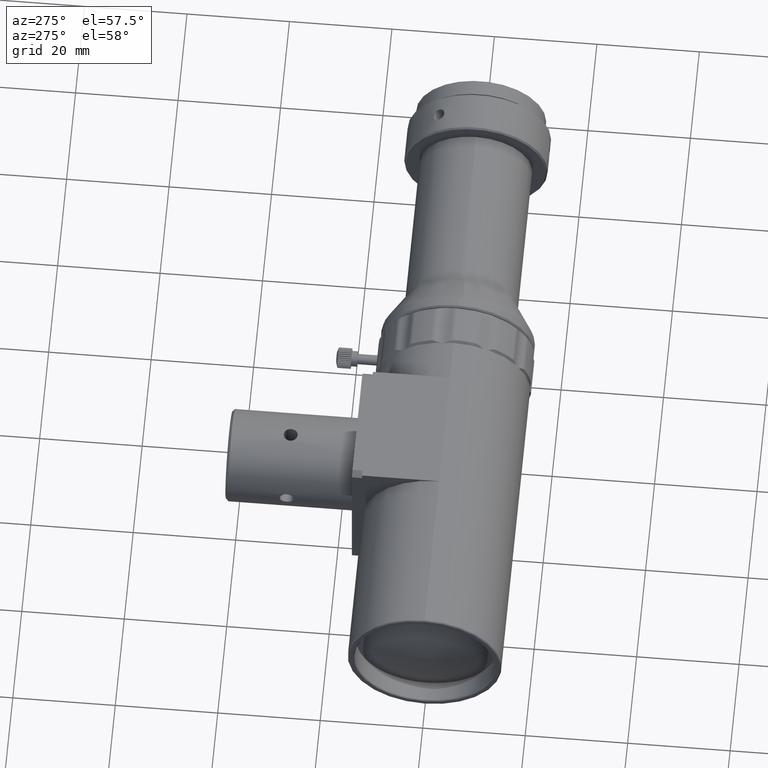
[diagram: clean part render]
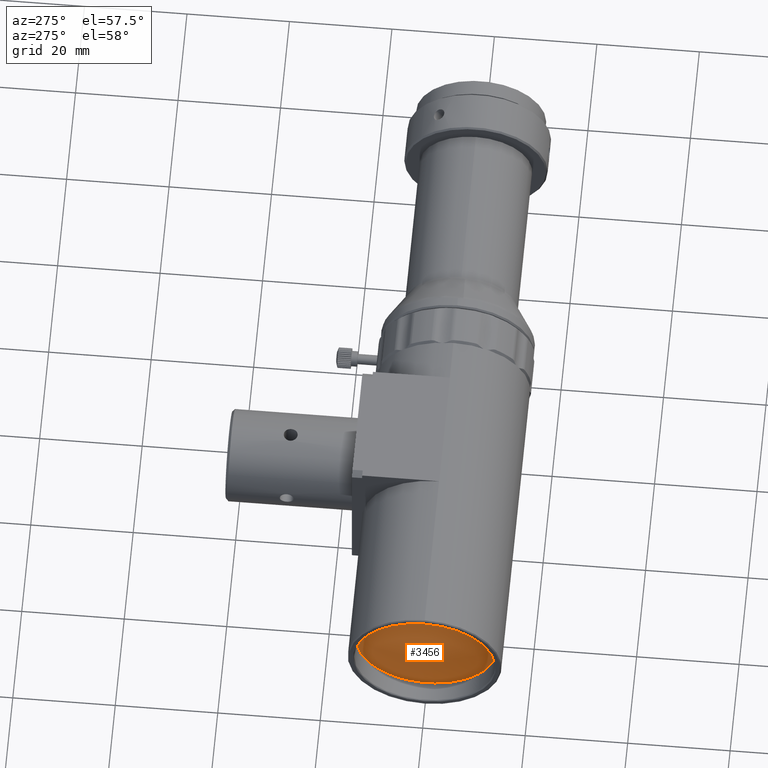
[diagram: same view with one face highlighted and labeled with its STEP entity id]
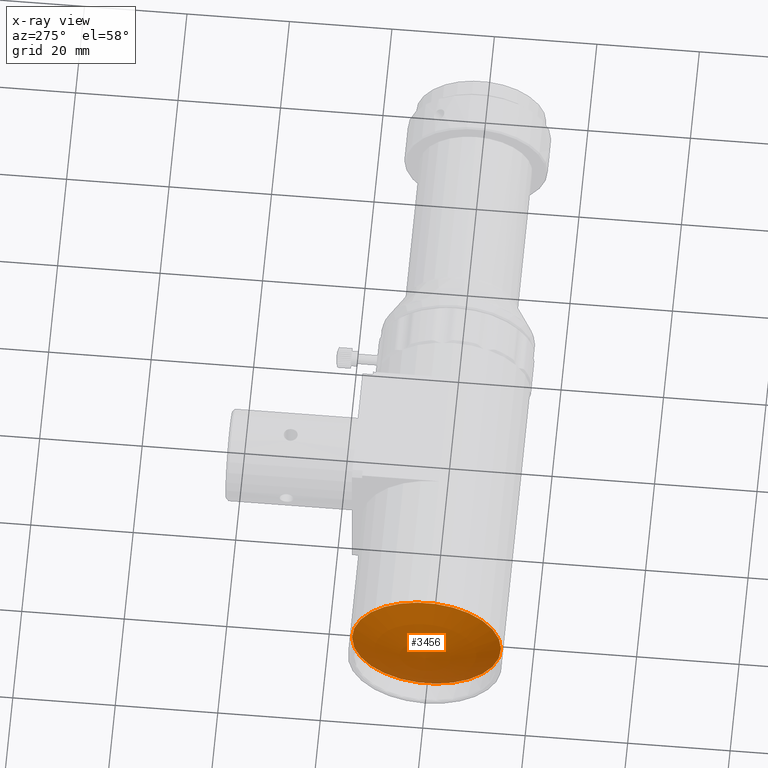
[diagram: x-ray of the same camera — body ghosted, the highlighted face saturated]
A machine part, auxiliary view. The second image highlights one B-rep face of the part: STEP entity #3456.
The next image is the same camera in x-ray: the body ghosted, the highlighted face saturated — about 0% of this face is hidden behind the body in this view.
In plain terms, the highlighted spherical surface has radius 31.2095 mm.
Its self-contained STEP definition (entity closure, byte-faithful):
#63 = AXIS2_PLACEMENT_3D ( 'NONE', #1530, #1493, #6660 ) ;
#696 = CARTESIAN_POINT ( 'NONE',  ( -51.47582244241313276, 14.53536256314270503, 5.386093316446118628E-15 ) ) ;
#1119 = FACE_OUTER_BOUND ( 'NONE', #3168, .T. ) ;
#1493 = DIRECTION ( 'NONE',  ( 1.000000000000000000, -1.725633230170963324E-31, 4.974117493840302992E-16 ) ) ;
#1530 = CARTESIAN_POINT ( 'NONE',  ( -51.47582244241313276, 3.469446951953614189E-15, 3.469446951953614189E-15 ) ) ;
#2172 = EDGE_CURVE ( 'NONE', #7192, #7192, #3882, .T. ) ;
#2284 = CARTESIAN_POINT ( 'NONE',  ( -23.85776571485850184, 3.469446951953614189E-15, 1.734723475976807094E-14 ) ) ;
#2431 = DIRECTION ( 'NONE',  ( -1.000000000000000000, -1.111663208988748425E-16, -4.974117493840302992E-16 ) ) ;
#3168 = EDGE_LOOP ( 'NONE', ( #4640 ) ) ;
#3456 = ADVANCED_FACE ( 'NONE', ( #1119 ), #6878, .T. ) ;
#3882 = CIRCLE ( 'NONE', #63, 14.53536256314270148 ) ;
#4366 = AXIS2_PLACEMENT_3D ( 'NONE', #2284, #2431, #6282 ) ;
#4640 = ORIENTED_EDGE ( 'NONE', *, *, #2172, .F. ) ;
#6282 = DIRECTION ( 'NONE',  ( 1.111663208988749164E-16, -1.000000000000000000, -1.318609258053555854E-16 ) ) ;
#6660 = DIRECTION ( 'NONE',  ( 0.000000000000000000, 1.000000000000000000, 1.318609258053556840E-16 ) ) ;
#6878 = SPHERICAL_SURFACE ( 'NONE', #4366, 31.20951493132240273 ) ;
#7192 = VERTEX_POINT ( 'NONE', #696 ) ;